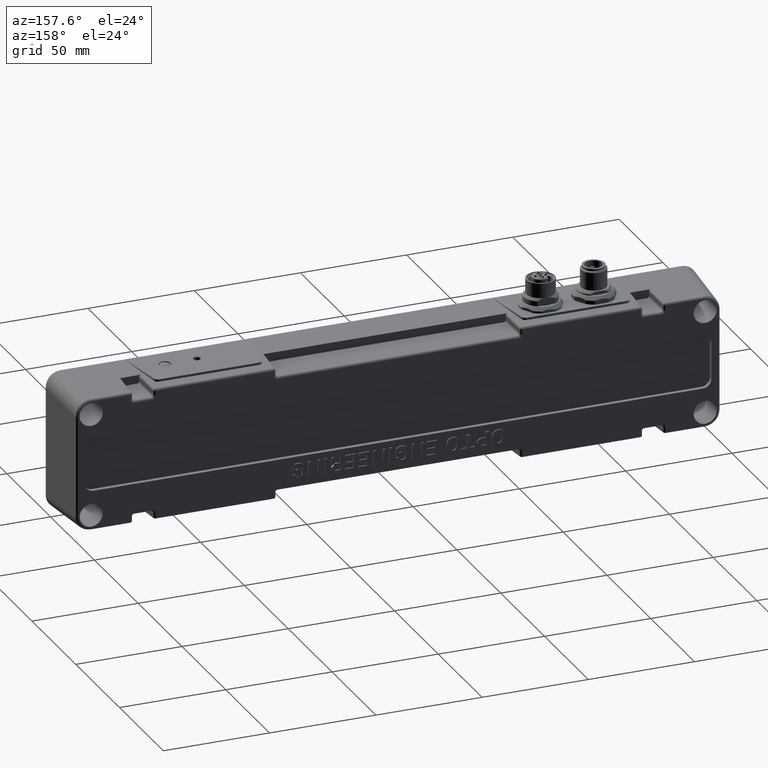
[diagram: clean part render]
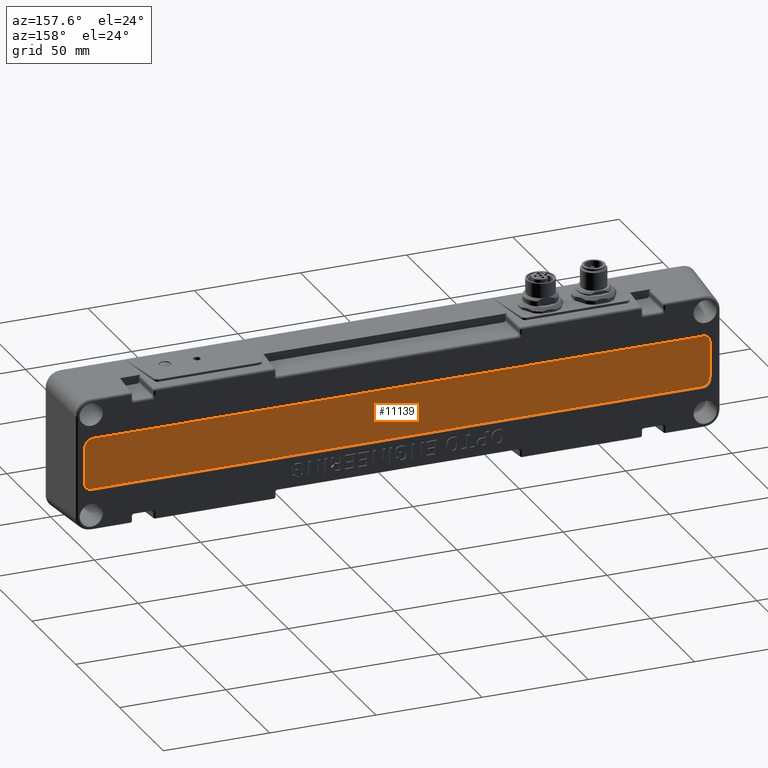
[diagram: same view with one face highlighted and labeled with its STEP entity id]
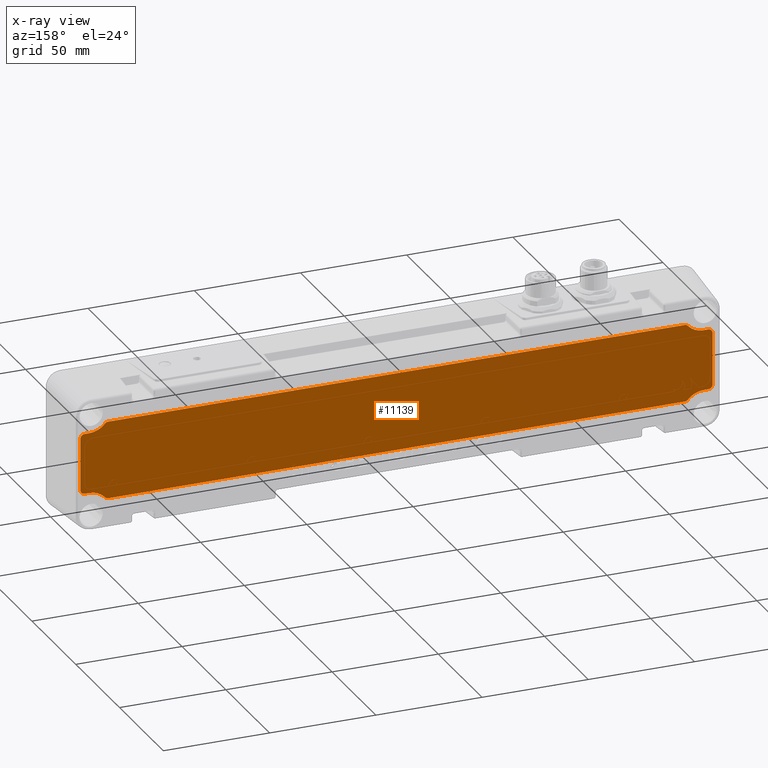
[diagram: x-ray of the same camera — body ghosted, the highlighted face saturated]
A machine part, auxiliary view. The second image highlights one B-rep face of the part: STEP entity #11139.
The next image is the same camera in x-ray: the body ghosted, the highlighted face saturated — about 0% of this face is hidden behind the body in this view.
In plain terms, the highlighted planar face has unit normal (0, -1, 0).
Its self-contained STEP definition (entity closure, byte-faithful):
#144 = AXIS2_PLACEMENT_3D ( 'NONE', #9499, #15442, #25288 ) ;
#178 = EDGE_CURVE ( 'NONE', #4987, #14073, #25260, .T. ) ;
#722 = ORIENTED_EDGE ( 'NONE', *, *, #27063, .T. ) ;
#1468 = ORIENTED_EDGE ( 'NONE', *, *, #2443, .F. ) ;
#1669 = CARTESIAN_POINT ( 'NONE',  ( -144.5000000000000000, 31.00000162000000259, -24.00000000000000000 ) ) ;
#1744 = VERTEX_POINT ( 'NONE', #4362 ) ;
#1858 = EDGE_CURVE ( 'NONE', #18868, #1744, #26884, .T. ) ;
#2427 = VERTEX_POINT ( 'NONE', #14282 ) ;
#2443 = EDGE_CURVE ( 'NONE', #26377, #23894, #9405, .T. ) ;
#2539 = DIRECTION ( 'NONE',  ( -0.000000000000000000, 1.000000000000000000, -0.000000000000000000 ) ) ;
#2541 = AXIS2_PLACEMENT_3D ( 'NONE', #29941, #18955, #14135 ) ;
#3128 = ORIENTED_EDGE ( 'NONE', *, *, #4092, .T. ) ;
#3162 = ORIENTED_EDGE ( 'NONE', *, *, #8645, .T. ) ;
#3402 = ORIENTED_EDGE ( 'NONE', *, *, #14937, .T. ) ;
#3533 = CIRCLE ( 'NONE', #22688, 9.750000000000001776 ) ;
#3539 = DIRECTION ( 'NONE',  ( 0.000000000000000000, 0.000000000000000000, 1.000000000000000000 ) ) ;
#3926 = EDGE_CURVE ( 'NONE', #14073, #32443, #14116, .T. ) ;
#4016 = CARTESIAN_POINT ( 'NONE',  ( 135.6682391336721309, 31.00000162000000259, 18.25000000000001066 ) ) ;
#4072 = AXIS2_PLACEMENT_3D ( 'NONE', #31820, #10586, #29281 ) ;
#4092 = EDGE_CURVE ( 'NONE', #4345, #8522, #6473, .T. ) ;
#4246 = CARTESIAN_POINT ( 'NONE',  ( -146.7500000000000284, 31.00000162000000259, -14.24999999999999822 ) ) ;
#4345 = VERTEX_POINT ( 'NONE', #4246 ) ;
#4362 = CARTESIAN_POINT ( 'NONE',  ( 135.6682391336721309, 31.00000162000000259, -18.24999999999998934 ) ) ;
#4371 = EDGE_CURVE ( 'NONE', #15544, #2427, #13628, .T. ) ;
#4392 = VECTOR ( 'NONE', #3539, 1000.000000000000000 ) ;
#4507 = EDGE_CURVE ( 'NONE', #26257, #26299, #7872, .T. ) ;
#4523 = ORIENTED_EDGE ( 'NONE', *, *, #24044, .T. ) ;
#4721 = LINE ( 'NONE', #30310, #26285 ) ;
#4987 = VERTEX_POINT ( 'NONE', #24772 ) ;
#5375 = CARTESIAN_POINT ( 'NONE',  ( 135.6682391336721594, 31.00000162000000259, -16.24999999999998579 ) ) ;
#5573 = ORIENTED_EDGE ( 'NONE', *, *, #12520, .T. ) ;
#5726 = LINE ( 'NONE', #31318, #25674 ) ;
#5750 = DIRECTION ( 'NONE',  ( -1.387778780781445676E-14, 0.000000000000000000, -1.000000000000000000 ) ) ;
#5816 = AXIS2_PLACEMENT_3D ( 'NONE', #6047, #32281, #11227 ) ;
#5818 = CARTESIAN_POINT ( 'NONE',  ( -148.7500000000000284, 31.00000162000000259, -12.25000000000000000 ) ) ;
#6047 = CARTESIAN_POINT ( 'NONE',  ( -135.6682391336721594, 31.00000162000000259, -16.24999999999998579 ) ) ;
#6392 = ORIENTED_EDGE ( 'NONE', *, *, #3926, .T. ) ;
#6398 = LINE ( 'NONE', #8492, #4392 ) ;
#6468 = CARTESIAN_POINT ( 'NONE',  ( -137.1715175790045294, 31.00000162000000259, 17.56914893617022599 ) ) ;
#6473 = CIRCLE ( 'NONE', #15819, 2.000000000000000000 ) ;
#6547 = CARTESIAN_POINT ( 'NONE',  ( 146.7499999999999716, 31.00000162000000259, -14.24999999999999822 ) ) ;
#6693 = DIRECTION ( 'NONE',  ( 0.000000000000000000, 0.000000000000000000, -1.000000000000000000 ) ) ;
#6857 = DIRECTION ( 'NONE',  ( 0.000000000000000000, -1.000000000000000000, 0.000000000000000000 ) ) ;
#7116 = EDGE_LOOP ( 'NONE', ( #25547, #3128, #4523, #27022, #5573, #8531, #32516, #722, #26223, #15541, #22025, #9033, #13148, #22772, #6392, #3162, #16358, #10941, #3402, #1468 ) ) ;
#7386 = CIRCLE ( 'NONE', #21624, 2.000000000000000000 ) ;
#7434 = EDGE_CURVE ( 'NONE', #1744, #10267, #4721, .T. ) ;
#7587 = DIRECTION ( 'NONE',  ( 1.000000000000000000, 0.000000000000000000, -4.081702296415986414E-16 ) ) ;
#7872 = CIRCLE ( 'NONE', #4072, 2.000000000000000000 ) ;
#8019 = CARTESIAN_POINT ( 'NONE',  ( -146.7500000000000284, 31.00000162000000259, 14.24999999999999822 ) ) ;
#8438 = CARTESIAN_POINT ( 'NONE',  ( 144.5000000000000000, 31.00000162000000259, 14.25000000000000000 ) ) ;
#8492 = CARTESIAN_POINT ( 'NONE',  ( -148.7500000000000284, 31.00000162000000259, -18.24999999999998934 ) ) ;
#8522 = VERTEX_POINT ( 'NONE', #5818 ) ;
#8531 = ORIENTED_EDGE ( 'NONE', *, *, #23595, .T. ) ;
#8600 = CARTESIAN_POINT ( 'NONE',  ( 148.7499999999999716, 31.00000162000000259, 18.25000000000001066 ) ) ;
#8645 = EDGE_CURVE ( 'NONE', #32443, #18868, #24270, .T. ) ;
#8989 = VERTEX_POINT ( 'NONE', #8019 ) ;
#9033 = ORIENTED_EDGE ( 'NONE', *, *, #4507, .T. ) ;
#9075 = DIRECTION ( 'NONE',  ( 0.000000000000000000, -1.000000000000000000, 0.000000000000000000 ) ) ;
#9405 = CIRCLE ( 'NONE', #28612, 9.750000000000001776 ) ;
#9499 = CARTESIAN_POINT ( 'NONE',  ( 146.7499999999999716, 31.00000162000000259, -12.24999999999999822 ) ) ;
#10247 = VERTEX_POINT ( 'NONE', #25994 ) ;
#10267 = VERTEX_POINT ( 'NONE', #20807 ) ;
#10337 = CARTESIAN_POINT ( 'NONE',  ( -148.7500000000000284, 31.00000162000000259, 12.24999999999999645 ) ) ;
#10586 = DIRECTION ( 'NONE',  ( -0.000000000000000000, 1.000000000000000000, -0.000000000000000000 ) ) ;
#10868 = DIRECTION ( 'NONE',  ( 0.000000000000000000, 0.000000000000000000, -1.000000000000000000 ) ) ;
#10941 = ORIENTED_EDGE ( 'NONE', *, *, #7434, .T. ) ;
#11139 = ADVANCED_FACE ( 'NONE', ( #12708 ), #20428, .F. ) ;
#11227 = DIRECTION ( 'NONE',  ( 0.000000000000000000, 0.000000000000000000, -1.000000000000000000 ) ) ;
#11811 = CARTESIAN_POINT ( 'NONE',  ( -137.1715175790045578, 31.00000162000000259, -17.56914893617019402 ) ) ;
#11928 = DIRECTION ( 'NONE',  ( 1.000000000000000000, 0.000000000000000000, 0.000000000000000000 ) ) ;
#12059 = DIRECTION ( 'NONE',  ( -0.000000000000000000, 1.000000000000000000, -0.000000000000000000 ) ) ;
#12384 = EDGE_CURVE ( 'NONE', #26257, #26468, #29662, .T. ) ;
#12520 = EDGE_CURVE ( 'NONE', #8989, #10247, #5726, .T. ) ;
#12708 = FACE_OUTER_BOUND ( 'NONE', #7116, .T. ) ;
#12767 = DIRECTION ( 'NONE',  ( 9.714451465470110893E-14, 0.000000000000000000, -1.000000000000000000 ) ) ;
#12796 = VERTEX_POINT ( 'NONE', #23210 ) ;
#12954 = CIRCLE ( 'NONE', #5816, 2.000000000000001776 ) ;
#13102 = DIRECTION ( 'NONE',  ( -0.000000000000000000, 1.000000000000000000, -0.000000000000000000 ) ) ;
#13148 = ORIENTED_EDGE ( 'NONE', *, *, #33433, .T. ) ;
#13628 = CIRCLE ( 'NONE', #29038, 2.000000000000000000 ) ;
#13790 = VERTEX_POINT ( 'NONE', #10337 ) ;
#14003 = CARTESIAN_POINT ( 'NONE',  ( -135.6682391336721309, 31.00000162000000259, 16.25000000000000711 ) ) ;
#14073 = VERTEX_POINT ( 'NONE', #6547 ) ;
#14116 = LINE ( 'NONE', #32785, #26222 ) ;
#14135 = DIRECTION ( 'NONE',  ( 0.000000000000000000, 0.000000000000000000, -1.000000000000000000 ) ) ;
#14282 = CARTESIAN_POINT ( 'NONE',  ( -135.6682391336721309, 31.00000162000000259, 18.25000000000001066 ) ) ;
#14289 = VECTOR ( 'NONE', #21805, 1000.000000000000000 ) ;
#14937 = EDGE_CURVE ( 'NONE', #10267, #23894, #12954, .T. ) ;
#15442 = DIRECTION ( 'NONE',  ( -0.000000000000000000, 1.000000000000000000, -0.000000000000000000 ) ) ;
#15451 = DIRECTION ( 'NONE',  ( 0.000000000000000000, -0.000000000000000000, -1.000000000000000000 ) ) ;
#15541 = ORIENTED_EDGE ( 'NONE', *, *, #31152, .F. ) ;
#15544 = VERTEX_POINT ( 'NONE', #6468 ) ;
#15634 = CIRCLE ( 'NONE', #2541, 9.750000000000001776 ) ;
#15819 = AXIS2_PLACEMENT_3D ( 'NONE', #24056, #16835, #29547 ) ;
#16336 = CARTESIAN_POINT ( 'NONE',  ( -146.7500000000000284, 31.00000162000000259, 12.24999999999999822 ) ) ;
#16358 = ORIENTED_EDGE ( 'NONE', *, *, #1858, .T. ) ;
#16615 = CARTESIAN_POINT ( 'NONE',  ( 144.5000000000000000, 31.00000162000000259, 14.25000000000000000 ) ) ;
#16835 = DIRECTION ( 'NONE',  ( -0.000000000000000000, 1.000000000000000000, -0.000000000000000000 ) ) ;
#17746 = CIRCLE ( 'NONE', #31991, 2.000000000000000000 ) ;
#17856 = CARTESIAN_POINT ( 'NONE',  ( 1.118499479934645828E-23, 31.00000162000000259, -1.580489756958096946E-24 ) ) ;
#18367 = DIRECTION ( 'NONE',  ( 0.000000000000000000, -1.000000000000000000, 0.000000000000000000 ) ) ;
#18775 = EDGE_CURVE ( 'NONE', #4345, #26377, #30770, .T. ) ;
#18868 = VERTEX_POINT ( 'NONE', #21652 ) ;
#18955 = DIRECTION ( 'NONE',  ( -0.000000000000000000, 1.000000000000000000, -0.000000000000000000 ) ) ;
#19573 = EDGE_CURVE ( 'NONE', #13790, #8989, #7386, .T. ) ;
#19608 = VECTOR ( 'NONE', #24509, 1000.000000000000000 ) ;
#19650 = DIRECTION ( 'NONE',  ( -1.387778780781445676E-14, 0.000000000000000000, -1.000000000000000000 ) ) ;
#19865 = AXIS2_PLACEMENT_3D ( 'NONE', #22129, #9075, #30006 ) ;
#20428 = PLANE ( 'NONE',  #29685 ) ;
#20631 = CARTESIAN_POINT ( 'NONE',  ( -144.5000000000000000, 31.00000162000000259, -14.25000000000000000 ) ) ;
#20807 = CARTESIAN_POINT ( 'NONE',  ( -135.6682391336721594, 31.00000162000000259, -18.24999999999998934 ) ) ;
#21433 = VECTOR ( 'NONE', #11928, 1000.000000000000000 ) ;
#21624 = AXIS2_PLACEMENT_3D ( 'NONE', #16336, #13102, #10868 ) ;
#21652 = CARTESIAN_POINT ( 'NONE',  ( 137.1715175790045578, 31.00000162000000259, -17.56914893617019402 ) ) ;
#21805 = DIRECTION ( 'NONE',  ( 0.000000000000000000, 0.000000000000000000, -1.000000000000000000 ) ) ;
#22025 = ORIENTED_EDGE ( 'NONE', *, *, #12384, .F. ) ;
#22129 = CARTESIAN_POINT ( 'NONE',  ( 144.5000000000000000, 31.00000162000000259, -24.00000000000000000 ) ) ;
#22244 = VERTEX_POINT ( 'NONE', #4016 ) ;
#22688 = AXIS2_PLACEMENT_3D ( 'NONE', #27951, #6857, #6693 ) ;
#22772 = ORIENTED_EDGE ( 'NONE', *, *, #178, .T. ) ;
#23136 = CARTESIAN_POINT ( 'NONE',  ( 148.7499999999999716, 31.00000162000000259, 12.25000000000000000 ) ) ;
#23210 = CARTESIAN_POINT ( 'NONE',  ( 137.1715175790045294, 31.00000162000000259, 17.56914893617022599 ) ) ;
#23595 = EDGE_CURVE ( 'NONE', #10247, #15544, #3533, .T. ) ;
#23894 = VERTEX_POINT ( 'NONE', #11811 ) ;
#24044 = EDGE_CURVE ( 'NONE', #8522, #13790, #6398, .T. ) ;
#24056 = CARTESIAN_POINT ( 'NONE',  ( -146.7500000000000284, 31.00000162000000259, -12.25000000000000000 ) ) ;
#24238 = LINE ( 'NONE', #8600, #14289 ) ;
#24270 = CIRCLE ( 'NONE', #19865, 9.750000000000001776 ) ;
#24509 = DIRECTION ( 'NONE',  ( -1.000000000000000000, 0.000000000000000000, 4.081702296415986414E-16 ) ) ;
#24613 = DIRECTION ( 'NONE',  ( -1.000000000000000000, 0.000000000000000000, -4.081702296415986414E-16 ) ) ;
#24644 = LINE ( 'NONE', #29619, #21433 ) ;
#24772 = CARTESIAN_POINT ( 'NONE',  ( 148.7499999999999716, 31.00000162000000259, -12.24999999999999645 ) ) ;
#25260 = CIRCLE ( 'NONE', #144, 2.000000000000000000 ) ;
#25271 = AXIS2_PLACEMENT_3D ( 'NONE', #5375, #2539, #12767 ) ;
#25288 = DIRECTION ( 'NONE',  ( 0.000000000000000000, 0.000000000000000000, -1.000000000000000000 ) ) ;
#25394 = CARTESIAN_POINT ( 'NONE',  ( 146.7499999999999716, 31.00000162000000259, 14.24999999999999822 ) ) ;
#25547 = ORIENTED_EDGE ( 'NONE', *, *, #18775, .F. ) ;
#25674 = VECTOR ( 'NONE', #26335, 1000.000000000000000 ) ;
#25823 = CARTESIAN_POINT ( 'NONE',  ( -144.5000000000000000, 31.00000162000000259, -14.25000000000000000 ) ) ;
#25994 = CARTESIAN_POINT ( 'NONE',  ( -144.5000000000000000, 31.00000162000000259, 14.25000000000000000 ) ) ;
#26050 = CARTESIAN_POINT ( 'NONE',  ( 144.5000000000000000, 31.00000162000000259, -14.25000000000000000 ) ) ;
#26222 = VECTOR ( 'NONE', #24613, 1000.000000000000000 ) ;
#26223 = ORIENTED_EDGE ( 'NONE', *, *, #30375, .T. ) ;
#26257 = VERTEX_POINT ( 'NONE', #25394 ) ;
#26285 = VECTOR ( 'NONE', #30466, 1000.000000000000000 ) ;
#26299 = VERTEX_POINT ( 'NONE', #23136 ) ;
#26335 = DIRECTION ( 'NONE',  ( 1.000000000000000000, -0.000000000000000000, 4.081702296415986414E-16 ) ) ;
#26377 = VERTEX_POINT ( 'NONE', #25823 ) ;
#26468 = VERTEX_POINT ( 'NONE', #8438 ) ;
#26884 = CIRCLE ( 'NONE', #25271, 2.000000000000001776 ) ;
#27022 = ORIENTED_EDGE ( 'NONE', *, *, #19573, .T. ) ;
#27063 = EDGE_CURVE ( 'NONE', #2427, #22244, #24644, .T. ) ;
#27951 = CARTESIAN_POINT ( 'NONE',  ( -144.5000000000000000, 31.00000162000000259, 24.00000000000000000 ) ) ;
#28017 = DIRECTION ( 'NONE',  ( 0.000000000000000000, 0.000000000000000000, 1.000000000000000000 ) ) ;
#28612 = AXIS2_PLACEMENT_3D ( 'NONE', #1669, #12059, #28017 ) ;
#29038 = AXIS2_PLACEMENT_3D ( 'NONE', #14003, #32668, #19650 ) ;
#29281 = DIRECTION ( 'NONE',  ( 0.000000000000000000, 0.000000000000000000, -1.000000000000000000 ) ) ;
#29547 = DIRECTION ( 'NONE',  ( 0.000000000000000000, 0.000000000000000000, -1.000000000000000000 ) ) ;
#29604 = CARTESIAN_POINT ( 'NONE',  ( 135.6682391336721309, 31.00000162000000259, 16.25000000000000711 ) ) ;
#29619 = CARTESIAN_POINT ( 'NONE',  ( -148.7500000000000284, 31.00000162000000259, 18.25000000000001066 ) ) ;
#29662 = LINE ( 'NONE', #16615, #19608 ) ;
#29685 = AXIS2_PLACEMENT_3D ( 'NONE', #17856, #18367, #15451 ) ;
#29782 = DIRECTION ( 'NONE',  ( -0.000000000000000000, 1.000000000000000000, -0.000000000000000000 ) ) ;
#29941 = CARTESIAN_POINT ( 'NONE',  ( 144.5000000000000000, 31.00000162000000259, 24.00000000000000000 ) ) ;
#30006 = DIRECTION ( 'NONE',  ( 0.000000000000000000, 0.000000000000000000, 1.000000000000000000 ) ) ;
#30310 = CARTESIAN_POINT ( 'NONE',  ( -148.7500000000000284, 31.00000162000000259, -18.24999999999998934 ) ) ;
#30375 = EDGE_CURVE ( 'NONE', #22244, #12796, #17746, .T. ) ;
#30400 = VECTOR ( 'NONE', #7587, 1000.000000000000000 ) ;
#30466 = DIRECTION ( 'NONE',  ( -1.000000000000000000, -0.000000000000000000, -0.000000000000000000 ) ) ;
#30770 = LINE ( 'NONE', #20631, #30400 ) ;
#31152 = EDGE_CURVE ( 'NONE', #26468, #12796, #15634, .T. ) ;
#31318 = CARTESIAN_POINT ( 'NONE',  ( -144.5000000000000000, 31.00000162000000259, 14.25000000000000000 ) ) ;
#31820 = CARTESIAN_POINT ( 'NONE',  ( 146.7499999999999716, 31.00000162000000259, 12.25000000000000000 ) ) ;
#31991 = AXIS2_PLACEMENT_3D ( 'NONE', #29604, #29782, #5750 ) ;
#32281 = DIRECTION ( 'NONE',  ( -0.000000000000000000, 1.000000000000000000, -0.000000000000000000 ) ) ;
#32443 = VERTEX_POINT ( 'NONE', #26050 ) ;
#32516 = ORIENTED_EDGE ( 'NONE', *, *, #4371, .T. ) ;
#32668 = DIRECTION ( 'NONE',  ( -0.000000000000000000, 1.000000000000000000, -0.000000000000000000 ) ) ;
#32785 = CARTESIAN_POINT ( 'NONE',  ( 144.5000000000000000, 31.00000162000000259, -14.25000000000000000 ) ) ;
#33433 = EDGE_CURVE ( 'NONE', #26299, #4987, #24238, .T. ) ;